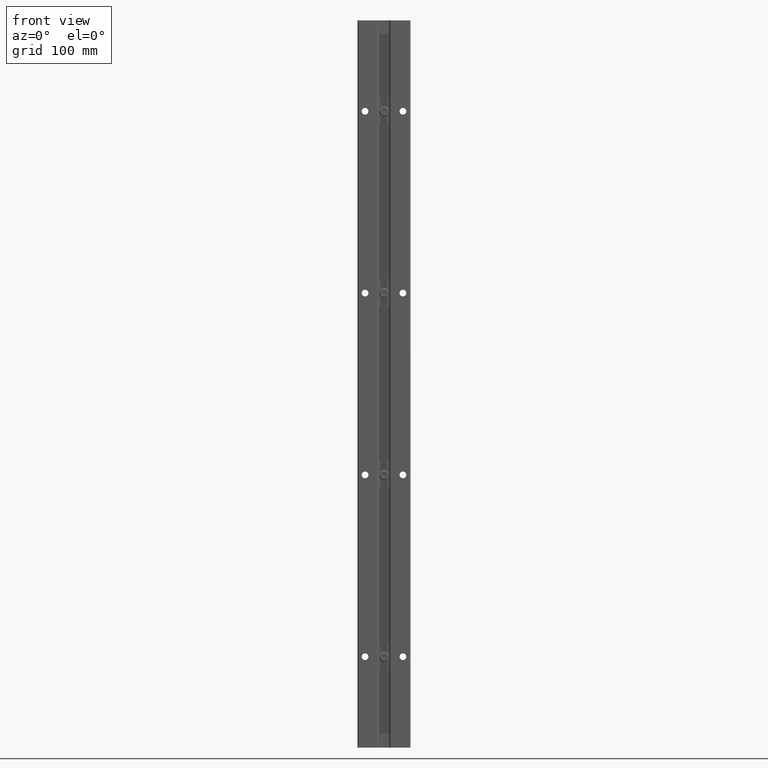
[diagram: clean part render]
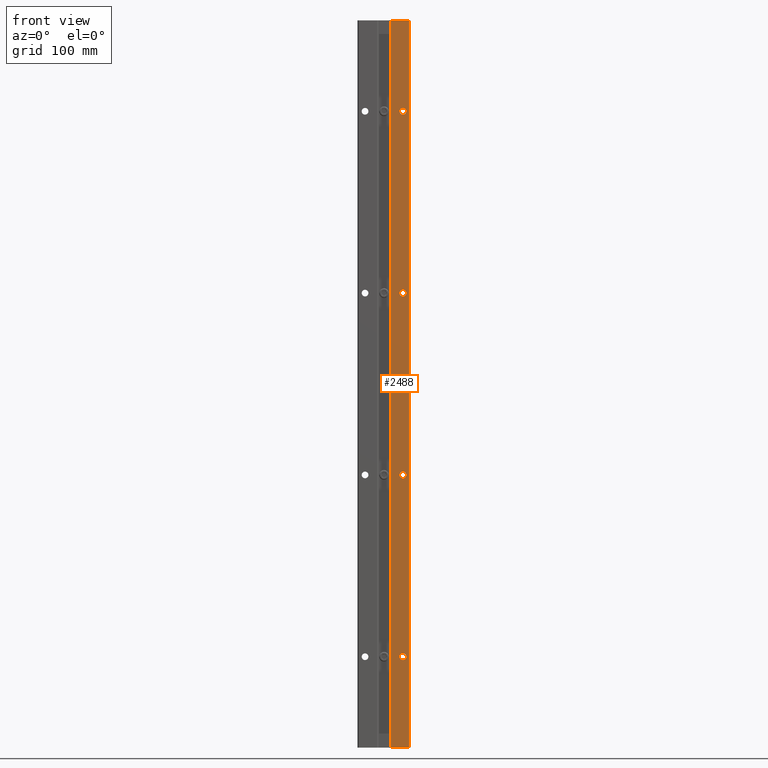
[diagram: same view with one face highlighted and labeled with its STEP entity id]
A machine part, front view. The second image highlights one B-rep face of the part: STEP entity #2488.
In plain terms, the highlighted planar face has unit normal (0, 1, 0).
Its self-contained STEP definition (entity closure, byte-faithful):
#49 = VERTEX_POINT ( 'NONE', #2872 ) ;
#58 = EDGE_CURVE ( 'NONE', #3141, #49, #2777, .T. ) ;
#88 = DIRECTION ( 'NONE',  ( 0.0000000000000000000, 0.0000000000000000000, 1.000000000000000000 ) ) ;
#90 = EDGE_CURVE ( 'NONE', #900, #4288, #268, .T. ) ;
#129 = DIRECTION ( 'NONE',  ( 0.0000000000000000000, 1.000000000000000000, 0.0000000000000000000 ) ) ;
#131 = AXIS2_PLACEMENT_3D ( 'NONE', #381, #2819, #3317 ) ;
#138 = EDGE_CURVE ( 'NONE', #4294, #3065, #731, .T. ) ;
#266 = CIRCLE ( 'NONE', #4328, 0.1105000000000019994 ) ;
#268 = CIRCLE ( 'NONE', #3185, 0.1105000000000019994 ) ;
#290 = CARTESIAN_POINT ( 'NONE',  ( 0.6250000000000000000, 0.0000000000000000000, -9.110500000000001819 ) ) ;
#324 = AXIS2_PLACEMENT_3D ( 'NONE', #4956, #1133, #88 ) ;
#365 = ORIENTED_EDGE ( 'NONE', *, *, #3620, .T. ) ;
#381 = CARTESIAN_POINT ( 'NONE',  ( 0.6250000000000000000, 0.0000000000000000000, -15.00000000000000000 ) ) ;
#424 = DIRECTION ( 'NONE',  ( 0.0000000000000000000, 1.000000000000000000, 0.0000000000000000000 ) ) ;
#456 = DIRECTION ( 'NONE',  ( 0.0000000000000000000, 1.000000000000000000, 0.0000000000000000000 ) ) ;
#474 = DIRECTION ( 'NONE',  ( 1.000000000000000000, 0.0000000000000000000, 0.0000000000000000000 ) ) ;
#524 = DIRECTION ( 'NONE',  ( 0.0000000000000000000, 1.000000000000000000, 0.0000000000000000000 ) ) ;
#556 = LINE ( 'NONE', #5417, #1704 ) ;
#608 = DIRECTION ( 'NONE',  ( 0.0000000000000000000, 1.000000000000000000, 0.0000000000000000000 ) ) ;
#653 = EDGE_CURVE ( 'NONE', #4288, #900, #266, .T. ) ;
#726 = CARTESIAN_POINT ( 'NONE',  ( 0.8255796188425064130, 0.0000000000000000000, -26.10463218188032641 ) ) ;
#731 = CIRCLE ( 'NONE', #1988, 0.1104999999999998206 ) ;
#900 = VERTEX_POINT ( 'NONE', #3764 ) ;
#927 = CARTESIAN_POINT ( 'NONE',  ( 0.6250000000000000000, 0.0000000000000000000, -8.889500000000001734 ) ) ;
#987 = CIRCLE ( 'NONE', #2696, 0.1104999999999998206 ) ;
#998 = CARTESIAN_POINT ( 'NONE',  ( 0.6250000000000000000, 0.0000000000000000000, -3.000000000000000444 ) ) ;
#1087 = DIRECTION ( 'NONE',  ( 0.0000000000000000000, -0.0000000000000000000, 1.000000000000000000 ) ) ;
#1133 = DIRECTION ( 'NONE',  ( 0.0000000000000000000, 1.000000000000000000, 0.0000000000000000000 ) ) ;
#1276 = CIRCLE ( 'NONE', #131, 0.1104999999999998206 ) ;
#1386 = DIRECTION ( 'NONE',  ( -1.000000000000000000, 0.0000000000000000000, 0.0000000000000000000 ) ) ;
#1392 = VECTOR ( 'NONE', #3690, 39.37007874015748143 ) ;
#1420 = LINE ( 'NONE', #2511, #4720 ) ;
#1433 = EDGE_CURVE ( 'NONE', #49, #5685, #556, .T. ) ;
#1498 = ORIENTED_EDGE ( 'NONE', *, *, #58, .F. ) ;
#1555 = CARTESIAN_POINT ( 'NONE',  ( 0.6250000000000000000, 0.0000000000000000000, -15.11050000000000004 ) ) ;
#1582 = PLANE ( 'NONE',  #4907 ) ;
#1704 = VECTOR ( 'NONE', #2948, 39.37007874015748143 ) ;
#1746 = FACE_BOUND ( 'NONE', #5426, .T. ) ;
#1764 = CARTESIAN_POINT ( 'NONE',  ( 0.6250000000000000000, 0.0000000000000000000, -2.889500000000000401 ) ) ;
#1838 = VERTEX_POINT ( 'NONE', #1555 ) ;
#1988 = AXIS2_PLACEMENT_3D ( 'NONE', #2513, #129, #5017 ) ;
#1994 = DIRECTION ( 'NONE',  ( 0.0000000000000000000, 0.0000000000000000000, 1.000000000000000000 ) ) ;
#2017 = VECTOR ( 'NONE', #1386, 39.37007874015748143 ) ;
#2096 = EDGE_CURVE ( 'NONE', #4744, #3028, #987, .T. ) ;
#2213 = FACE_BOUND ( 'NONE', #3701, .T. ) ;
#2282 = EDGE_LOOP ( 'NONE', ( #5570, #3075, #1498, #4245 ) ) ;
#2342 = CIRCLE ( 'NONE', #324, 0.1104999999999998206 ) ;
#2368 = EDGE_LOOP ( 'NONE', ( #4287, #3924 ) ) ;
#2488 = ADVANCED_FACE ( 'NONE', ( #2213, #3043, #1746, #5808, #4501 ), #1582, .F. ) ;
#2511 = CARTESIAN_POINT ( 'NONE',  ( -2.500000000000000000, 0.0000000000000000000, 0.0000000000000000000 ) ) ;
#2512 = EDGE_CURVE ( 'NONE', #1838, #4261, #4202, .T. ) ;
#2513 = CARTESIAN_POINT ( 'NONE',  ( 0.6250000000000000000, 0.0000000000000000000, -3.000000000000000444 ) ) ;
#2563 = CARTESIAN_POINT ( 'NONE',  ( 0.8255796188425064130, 0.0000000000000000000, -24.00000000000000355 ) ) ;
#2696 = AXIS2_PLACEMENT_3D ( 'NONE', #4292, #3790, #5756 ) ;
#2777 = LINE ( 'NONE', #2933, #2017 ) ;
#2819 = DIRECTION ( 'NONE',  ( 0.0000000000000000000, 1.000000000000000000, 0.0000000000000000000 ) ) ;
#2825 = EDGE_CURVE ( 'NONE', #4261, #1838, #1276, .T. ) ;
#2872 = CARTESIAN_POINT ( 'NONE',  ( 0.2244203811574917440, 4.268512490100411279E-18, -24.00000000000000355 ) ) ;
#2933 = CARTESIAN_POINT ( 'NONE',  ( 0.2244203811574917440, 0.0000000000000000000, -24.00000000000000355 ) ) ;
#2945 = CARTESIAN_POINT ( 'NONE',  ( 0.2244203811574911334, 1.109813247426106994E-16, 0.0000000000000000000 ) ) ;
#2948 = DIRECTION ( 'NONE',  ( 0.0000000000000000000, 0.0000000000000000000, 1.000000000000000000 ) ) ;
#3028 = VERTEX_POINT ( 'NONE', #927 ) ;
#3034 = CARTESIAN_POINT ( 'NONE',  ( -2.500000000000000000, 0.0000000000000000000, 0.1250000000000000000 ) ) ;
#3043 = FACE_BOUND ( 'NONE', #2368, .T. ) ;
#3045 = EDGE_CURVE ( 'NONE', #3028, #4744, #2342, .T. ) ;
#3065 = VERTEX_POINT ( 'NONE', #5861 ) ;
#3075 = ORIENTED_EDGE ( 'NONE', *, *, #1433, .F. ) ;
#3141 = VERTEX_POINT ( 'NONE', #2563 ) ;
#3148 = ORIENTED_EDGE ( 'NONE', *, *, #90, .T. ) ;
#3185 = AXIS2_PLACEMENT_3D ( 'NONE', #3350, #456, #5399 ) ;
#3317 = DIRECTION ( 'NONE',  ( 0.0000000000000000000, 0.0000000000000000000, 1.000000000000000000 ) ) ;
#3320 = CIRCLE ( 'NONE', #3975, 0.1104999999999998206 ) ;
#3350 = CARTESIAN_POINT ( 'NONE',  ( 0.6250000000000000000, 0.0000000000000000000, -21.00000000000000355 ) ) ;
#3474 = EDGE_LOOP ( 'NONE', ( #365, #6362 ) ) ;
#3559 = EDGE_CURVE ( 'NONE', #5685, #5617, #1420, .T. ) ;
#3620 = EDGE_CURVE ( 'NONE', #3065, #4294, #3320, .T. ) ;
#3677 = CARTESIAN_POINT ( 'NONE',  ( 0.6250000000000000000, 0.0000000000000000000, -14.88949999999999996 ) ) ;
#3690 = DIRECTION ( 'NONE',  ( 0.0000000000000000000, 0.0000000000000000000, 1.000000000000000000 ) ) ;
#3701 = EDGE_LOOP ( 'NONE', ( #3812, #5610 ) ) ;
#3743 = CARTESIAN_POINT ( 'NONE',  ( 0.6250000000000000000, 0.0000000000000000000, -21.11050000000000537 ) ) ;
#3764 = CARTESIAN_POINT ( 'NONE',  ( 0.6250000000000000000, 0.0000000000000000000, -20.88950000000000173 ) ) ;
#3790 = DIRECTION ( 'NONE',  ( 0.0000000000000000000, 1.000000000000000000, 0.0000000000000000000 ) ) ;
#3812 = ORIENTED_EDGE ( 'NONE', *, *, #2512, .T. ) ;
#3900 = CARTESIAN_POINT ( 'NONE',  ( 0.6250000000000000000, 0.0000000000000000000, -21.00000000000000355 ) ) ;
#3924 = ORIENTED_EDGE ( 'NONE', *, *, #3045, .T. ) ;
#3975 = AXIS2_PLACEMENT_3D ( 'NONE', #998, #524, #1994 ) ;
#4202 = CIRCLE ( 'NONE', #4373, 0.1104999999999998206 ) ;
#4245 = ORIENTED_EDGE ( 'NONE', *, *, #5385, .T. ) ;
#4261 = VERTEX_POINT ( 'NONE', #3677 ) ;
#4278 = CARTESIAN_POINT ( 'NONE',  ( 0.6250000000000000000, 0.0000000000000000000, -15.00000000000000000 ) ) ;
#4287 = ORIENTED_EDGE ( 'NONE', *, *, #2096, .T. ) ;
#4288 = VERTEX_POINT ( 'NONE', #3743 ) ;
#4292 = CARTESIAN_POINT ( 'NONE',  ( 0.6250000000000000000, 0.0000000000000000000, -9.000000000000001776 ) ) ;
#4294 = VERTEX_POINT ( 'NONE', #1764 ) ;
#4328 = AXIS2_PLACEMENT_3D ( 'NONE', #3900, #4409, #6300 ) ;
#4373 = AXIS2_PLACEMENT_3D ( 'NONE', #4278, #424, #6257 ) ;
#4380 = LINE ( 'NONE', #726, #1392 ) ;
#4409 = DIRECTION ( 'NONE',  ( 0.0000000000000000000, 1.000000000000000000, 0.0000000000000000000 ) ) ;
#4501 = FACE_OUTER_BOUND ( 'NONE', #2282, .T. ) ;
#4720 = VECTOR ( 'NONE', #474, 39.37007874015748143 ) ;
#4744 = VERTEX_POINT ( 'NONE', #290 ) ;
#4827 = ORIENTED_EDGE ( 'NONE', *, *, #653, .T. ) ;
#4907 = AXIS2_PLACEMENT_3D ( 'NONE', #3034, #608, #1087 ) ;
#4956 = CARTESIAN_POINT ( 'NONE',  ( 0.6250000000000000000, 0.0000000000000000000, -9.000000000000001776 ) ) ;
#5017 = DIRECTION ( 'NONE',  ( 0.0000000000000000000, 0.0000000000000000000, 1.000000000000000000 ) ) ;
#5385 = EDGE_CURVE ( 'NONE', #3141, #5617, #4380, .T. ) ;
#5399 = DIRECTION ( 'NONE',  ( 0.0000000000000000000, 0.0000000000000000000, 1.000000000000000000 ) ) ;
#5417 = CARTESIAN_POINT ( 'NONE',  ( 0.2244203811574917440, 0.0000000000000000000, -26.10463218188032641 ) ) ;
#5426 = EDGE_LOOP ( 'NONE', ( #4827, #3148 ) ) ;
#5570 = ORIENTED_EDGE ( 'NONE', *, *, #3559, .F. ) ;
#5610 = ORIENTED_EDGE ( 'NONE', *, *, #2825, .T. ) ;
#5617 = VERTEX_POINT ( 'NONE', #6259 ) ;
#5685 = VERTEX_POINT ( 'NONE', #2945 ) ;
#5756 = DIRECTION ( 'NONE',  ( 0.0000000000000000000, 0.0000000000000000000, 1.000000000000000000 ) ) ;
#5808 = FACE_BOUND ( 'NONE', #3474, .T. ) ;
#5861 = CARTESIAN_POINT ( 'NONE',  ( 0.6250000000000000000, 0.0000000000000000000, -3.110500000000000043 ) ) ;
#6257 = DIRECTION ( 'NONE',  ( 0.0000000000000000000, 0.0000000000000000000, 1.000000000000000000 ) ) ;
#6259 = CARTESIAN_POINT ( 'NONE',  ( 0.8255796188425067461, 0.0000000000000000000, 0.0000000000000000000 ) ) ;
#6300 = DIRECTION ( 'NONE',  ( 0.0000000000000000000, 0.0000000000000000000, 1.000000000000000000 ) ) ;
#6362 = ORIENTED_EDGE ( 'NONE', *, *, #138, .T. ) ;